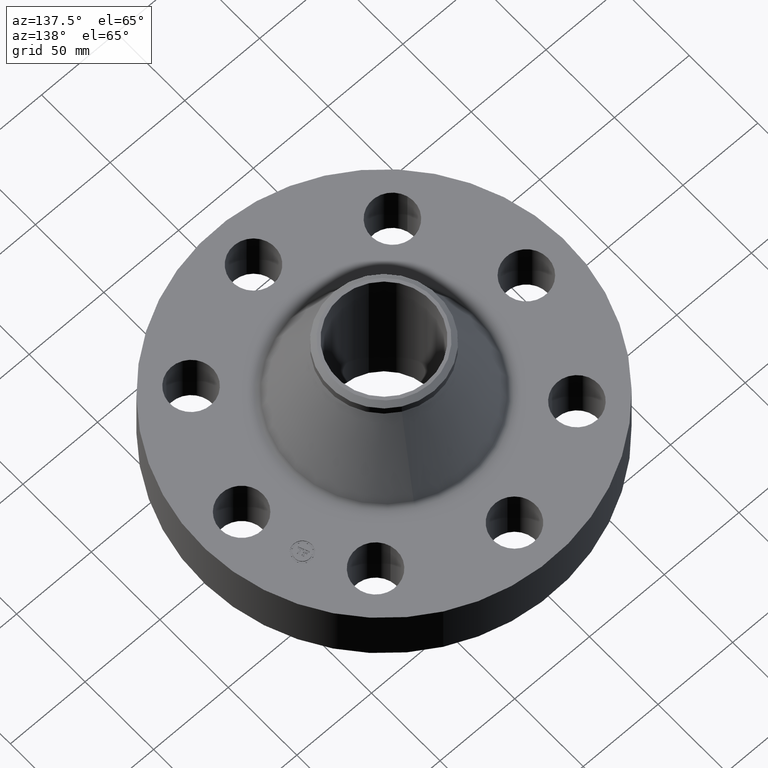
[diagram: clean part render]
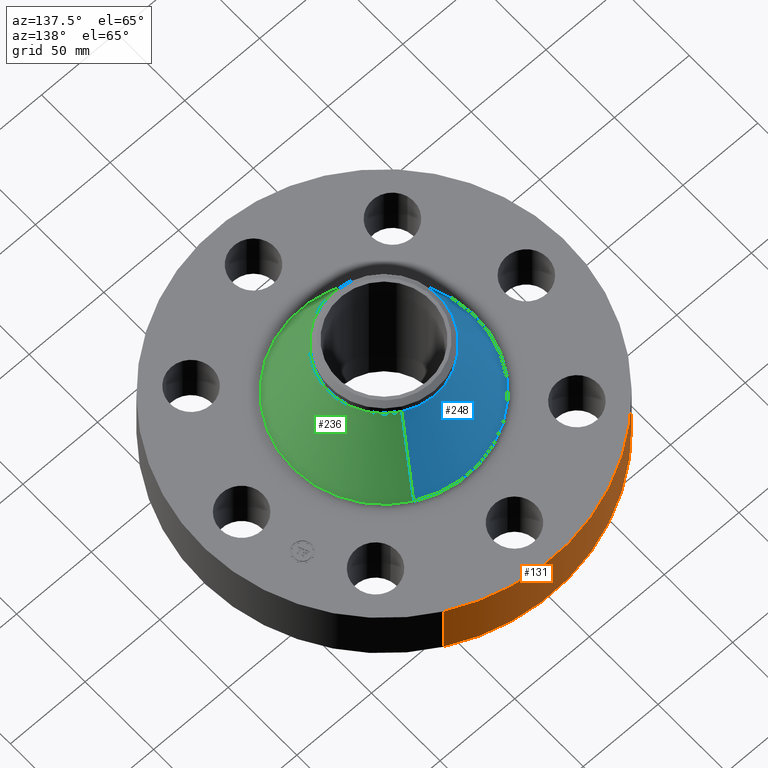
[diagram: same view with three faces highlighted in distinct colors, each labeled with its STEP entity id]
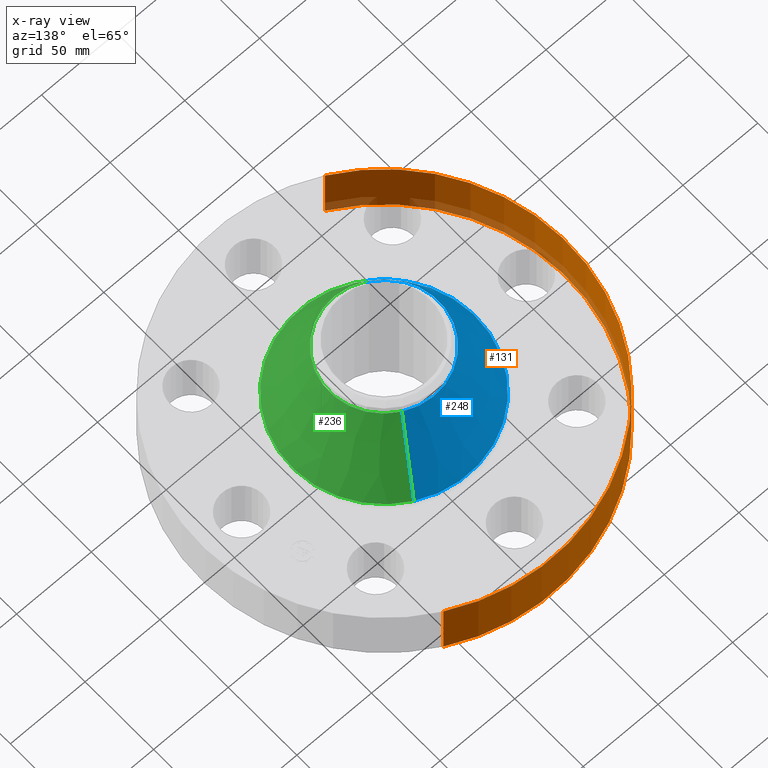
[diagram: x-ray of the same camera — body ghosted, the three highlighted faces saturated]
A machine part, auxiliary view with three faces highlighted in distinct colors.
The next image is the same camera in x-ray (body ghosted, the three faces saturated) — at least one of them is partly hidden behind the body in this view.
Their STEP definitions:

[orange] entity #131 — the highlighted cylindrical surface (partial cylindrical patch) has radius 122.174 mm, axis along (0, 0, -1).
#95=AXIS2_PLACEMENT_3D('Cylinder Axis2P3D',#92,#93,#94) ;
#99=AXIS2_PLACEMENT_3D('Circle Axis2P3D',#97,#98,$) ;
#115=AXIS2_PLACEMENT_3D('Circle Axis2P3D',#113,#114,$) ;
#92=CARTESIAN_POINT('Axis2P3D Location',(0.,0.,2.06000000001)) ;
#97=CARTESIAN_POINT('Axis2P3D Location',(0.,0.,5.59482469102E-016)) ;
#101=CARTESIAN_POINT('Vertex',(-2.3060368407,-4.22117212271,5.59482469102E-016)) ;
#103=CARTESIAN_POINT('Vertex',(2.3060368407,4.22117212271,5.59482469102E-016)) ;
#106=CARTESIAN_POINT('Line Origine',(-2.3060368407,-4.22117212271,0.810000000003)) ;
#110=CARTESIAN_POINT('Vertex',(-2.3060368407,-4.22117212271,1.62000000001)) ;
#113=CARTESIAN_POINT('Axis2P3D Location',(0.,0.,1.62000000001)) ;
#117=CARTESIAN_POINT('Vertex',(2.3060368407,4.22117212271,1.62000000001)) ;
#120=CARTESIAN_POINT('Line Origine',(2.3060368407,4.22117212271,0.810000000003)) ;
#93=DIRECTION('Axis2P3D Direction',(0.,0.,-0.0393700787402)) ;
#94=DIRECTION('Axis2P3D XDirection',(0.0188750212049,0.0345504945626,0.)) ;
#98=DIRECTION('Axis2P3D Direction',(0.,0.,-0.0393700787402)) ;
#107=DIRECTION('Vector Direction',(0.,0.,-0.0393700787402)) ;
#114=DIRECTION('Axis2P3D Direction',(0.,0.,-0.0393700787402)) ;
#121=DIRECTION('Vector Direction',(0.,0.,-0.0393700787402)) ;
#108=VECTOR('Line Direction',#107,0.0393700787402) ;
#122=VECTOR('Line Direction',#121,0.0393700787402) ;
#126=ORIENTED_EDGE('',*,*,#105,.F.) ;
#127=ORIENTED_EDGE('',*,*,#112,.T.) ;
#128=ORIENTED_EDGE('',*,*,#119,.T.) ;
#129=ORIENTED_EDGE('',*,*,#124,.F.) ;
#131=ADVANCED_FACE('PartBody',(#130),#96,.T.) ;
#100=CIRCLE('generated circle',#99,4.81000000002) ;
#116=CIRCLE('generated circle',#115,4.81000000002) ;
#96=CYLINDRICAL_SURFACE('generated cylinder',#95,4.81000000002) ;
#105=EDGE_CURVE('',#102,#104,#100,.T.) ;
#112=EDGE_CURVE('',#102,#111,#109,.F.) ;
#119=EDGE_CURVE('',#111,#118,#116,.T.) ;
#124=EDGE_CURVE('',#104,#118,#123,.F.) ;
#125=EDGE_LOOP('',(#126,#127,#128,#129)) ;
#130=FACE_OUTER_BOUND('',#125,.T.) ;
#109=LINE('Line',#106,#108) ;
#123=LINE('Line',#120,#122) ;
#102=VERTEX_POINT('',#101) ;
#104=VERTEX_POINT('',#103) ;
#111=VERTEX_POINT('',#110) ;
#118=VERTEX_POINT('',#117) ;

[blue] entity #248 — the highlighted conical surface has half-angle 24.777 deg.
#196=AXIS2_PLACEMENT_3D('Circle Axis2P3D',#194,#195,$) ;
#209=AXIS2_PLACEMENT_3D('Cone Axis2P3D',#206,#207,#208) ;
#239=AXIS2_PLACEMENT_3D('Circle Axis2P3D',#237,#238,$) ;
#167=CARTESIAN_POINT('Vertex',(1.15437224008,2.11306421175,1.68971008371)) ;
#174=CARTESIAN_POINT('Vertex',(-1.15437224008,-2.11306421175,1.68971008371)) ;
#194=CARTESIAN_POINT('Axis2P3D Location',(0.,0.,1.68971008371)) ;
#206=CARTESIAN_POINT('Axis2P3D Location',(0.,0.,3.78651327942)) ;
#211=CARTESIAN_POINT('Line Origine',(0.922372507837,1.68839155044,2.73811168156)) ;
#215=CARTESIAN_POINT('Vertex',(0.690372775593,1.26371888913,3.78651327942)) ;
#222=CARTESIAN_POINT('Vertex',(-0.690372775593,-1.26371888913,3.78651327942)) ;
#225=CARTESIAN_POINT('Line Origine',(-0.922372507837,-1.68839155044,2.73811168156)) ;
#237=CARTESIAN_POINT('Axis2P3D Location',(0.,0.,3.78651327942)) ;
#195=DIRECTION('Axis2P3D Direction',(0.,0.,-0.0393700787402)) ;
#207=DIRECTION('Axis2P3D Direction',(0.,0.,-0.0393700787402)) ;
#208=DIRECTION('Axis2P3D XDirection',(-0.0188750212049,-0.0345504945626,0.)) ;
#212=DIRECTION('Vector Direction',(0.00791019363739,0.0144795123296,-0.0357459880171)) ;
#226=DIRECTION('Vector Direction',(-0.00791019363739,-0.0144795123296,-0.0357459880171)) ;
#238=DIRECTION('Axis2P3D Direction',(0.,0.,-0.0393700787402)) ;
#213=VECTOR('Line Direction',#212,0.0393700787402) ;
#227=VECTOR('Line Direction',#226,0.0393700787402) ;
#243=ORIENTED_EDGE('',*,*,#198,.F.) ;
#244=ORIENTED_EDGE('',*,*,#229,.T.) ;
#245=ORIENTED_EDGE('',*,*,#241,.T.) ;
#246=ORIENTED_EDGE('',*,*,#217,.F.) ;
#248=ADVANCED_FACE('PartBody',(#247),#210,.T.) ;
#197=CIRCLE('generated circle',#196,2.40782383734) ;
#240=CIRCLE('generated circle',#239,1.44000000001) ;
#210=CONICAL_SURFACE('Cone',#209,1.44000000001,0.432434713443) ;
#198=EDGE_CURVE('',#175,#168,#197,.T.) ;
#217=EDGE_CURVE('',#168,#216,#214,.F.) ;
#229=EDGE_CURVE('',#175,#223,#228,.F.) ;
#241=EDGE_CURVE('',#223,#216,#240,.T.) ;
#242=EDGE_LOOP('',(#243,#244,#245,#246)) ;
#247=FACE_OUTER_BOUND('',#242,.T.) ;
#214=LINE('Line',#211,#213) ;
#228=LINE('Line',#225,#227) ;
#168=VERTEX_POINT('',#167) ;
#175=VERTEX_POINT('',#174) ;
#216=VERTEX_POINT('',#215) ;
#223=VERTEX_POINT('',#222) ;

[green] entity #236 — the highlighted conical surface has half-angle 24.777 deg.
#172=AXIS2_PLACEMENT_3D('Circle Axis2P3D',#170,#171,$) ;
#209=AXIS2_PLACEMENT_3D('Cone Axis2P3D',#206,#207,#208) ;
#220=AXIS2_PLACEMENT_3D('Circle Axis2P3D',#218,#219,$) ;
#167=CARTESIAN_POINT('Vertex',(1.15437224008,2.11306421175,1.68971008371)) ;
#170=CARTESIAN_POINT('Axis2P3D Location',(0.,0.,1.68971008371)) ;
#174=CARTESIAN_POINT('Vertex',(-1.15437224008,-2.11306421175,1.68971008371)) ;
#206=CARTESIAN_POINT('Axis2P3D Location',(0.,0.,3.78651327942)) ;
#211=CARTESIAN_POINT('Line Origine',(0.922372507837,1.68839155044,2.73811168156)) ;
#215=CARTESIAN_POINT('Vertex',(0.690372775593,1.26371888913,3.78651327942)) ;
#218=CARTESIAN_POINT('Axis2P3D Location',(0.,0.,3.78651327942)) ;
#222=CARTESIAN_POINT('Vertex',(-0.690372775593,-1.26371888913,3.78651327942)) ;
#225=CARTESIAN_POINT('Line Origine',(-0.922372507837,-1.68839155044,2.73811168156)) ;
#171=DIRECTION('Axis2P3D Direction',(0.,0.,-0.0393700787402)) ;
#207=DIRECTION('Axis2P3D Direction',(0.,0.,-0.0393700787402)) ;
#208=DIRECTION('Axis2P3D XDirection',(-0.0188750212049,-0.0345504945626,0.)) ;
#212=DIRECTION('Vector Direction',(0.00791019363739,0.0144795123296,-0.0357459880171)) ;
#219=DIRECTION('Axis2P3D Direction',(0.,0.,-0.0393700787402)) ;
#226=DIRECTION('Vector Direction',(-0.00791019363739,-0.0144795123296,-0.0357459880171)) ;
#213=VECTOR('Line Direction',#212,0.0393700787402) ;
#227=VECTOR('Line Direction',#226,0.0393700787402) ;
#231=ORIENTED_EDGE('',*,*,#176,.F.) ;
#232=ORIENTED_EDGE('',*,*,#217,.T.) ;
#233=ORIENTED_EDGE('',*,*,#224,.T.) ;
#234=ORIENTED_EDGE('',*,*,#229,.F.) ;
#236=ADVANCED_FACE('PartBody',(#235),#210,.T.) ;
#173=CIRCLE('generated circle',#172,2.40782383734) ;
#221=CIRCLE('generated circle',#220,1.44000000001) ;
#210=CONICAL_SURFACE('Cone',#209,1.44000000001,0.432434713443) ;
#176=EDGE_CURVE('',#168,#175,#173,.T.) ;
#217=EDGE_CURVE('',#168,#216,#214,.F.) ;
#224=EDGE_CURVE('',#216,#223,#221,.T.) ;
#229=EDGE_CURVE('',#175,#223,#228,.F.) ;
#230=EDGE_LOOP('',(#231,#232,#233,#234)) ;
#235=FACE_OUTER_BOUND('',#230,.T.) ;
#214=LINE('Line',#211,#213) ;
#228=LINE('Line',#225,#227) ;
#168=VERTEX_POINT('',#167) ;
#175=VERTEX_POINT('',#174) ;
#216=VERTEX_POINT('',#215) ;
#223=VERTEX_POINT('',#222) ;